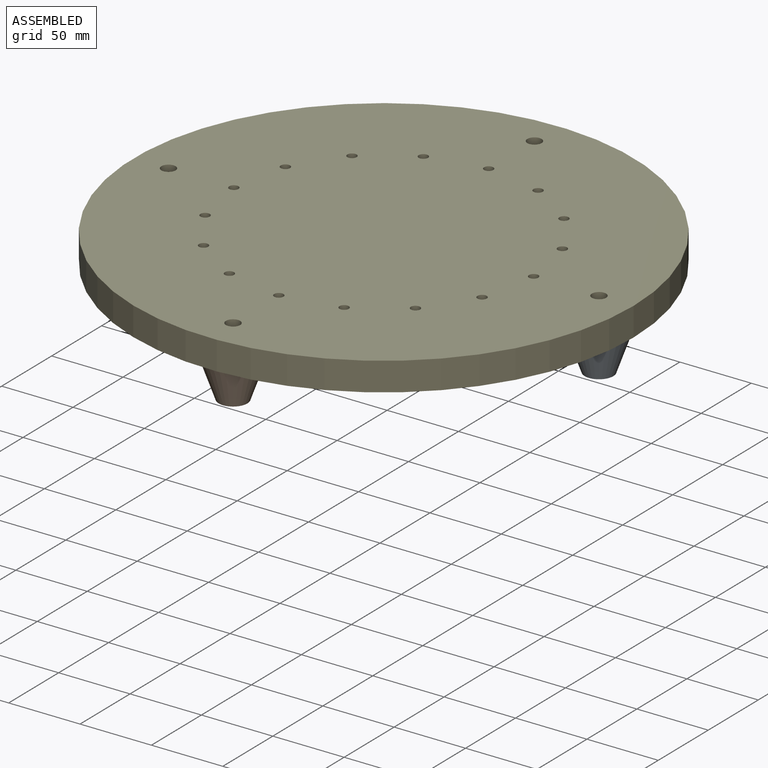
[diagram: assembled view]
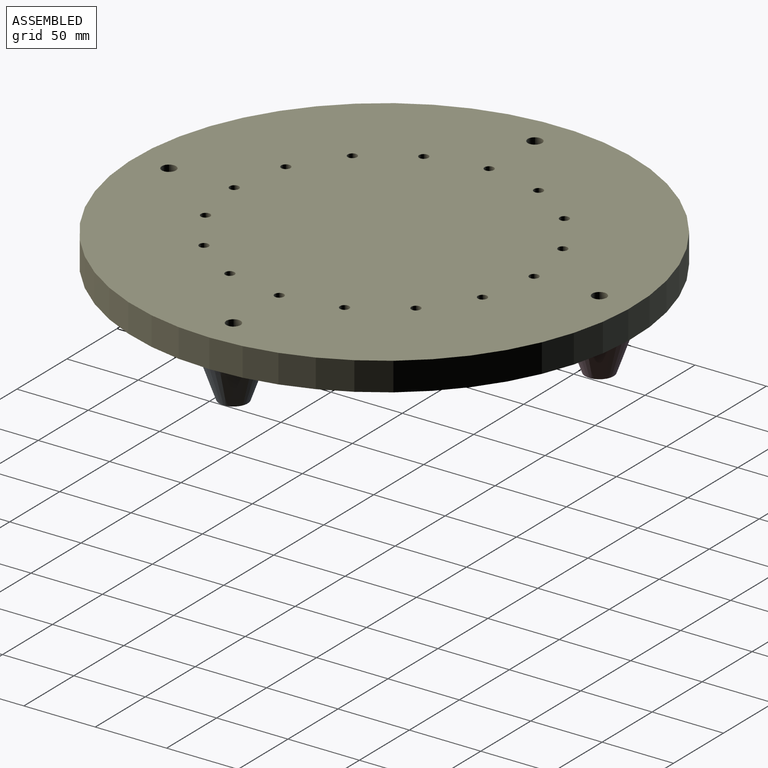
[diagram: assembled view, second angle]
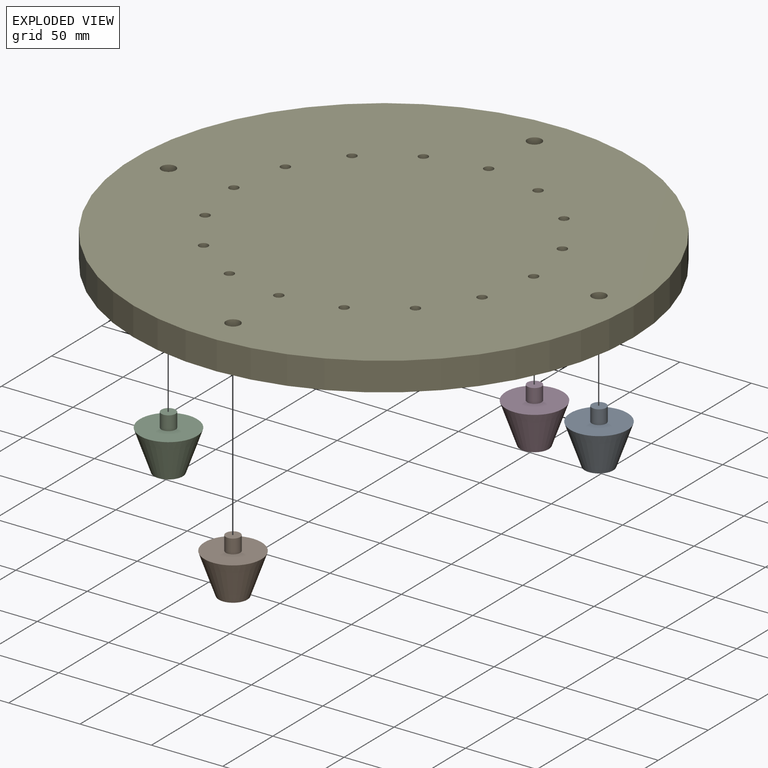
[diagram: exploded view]
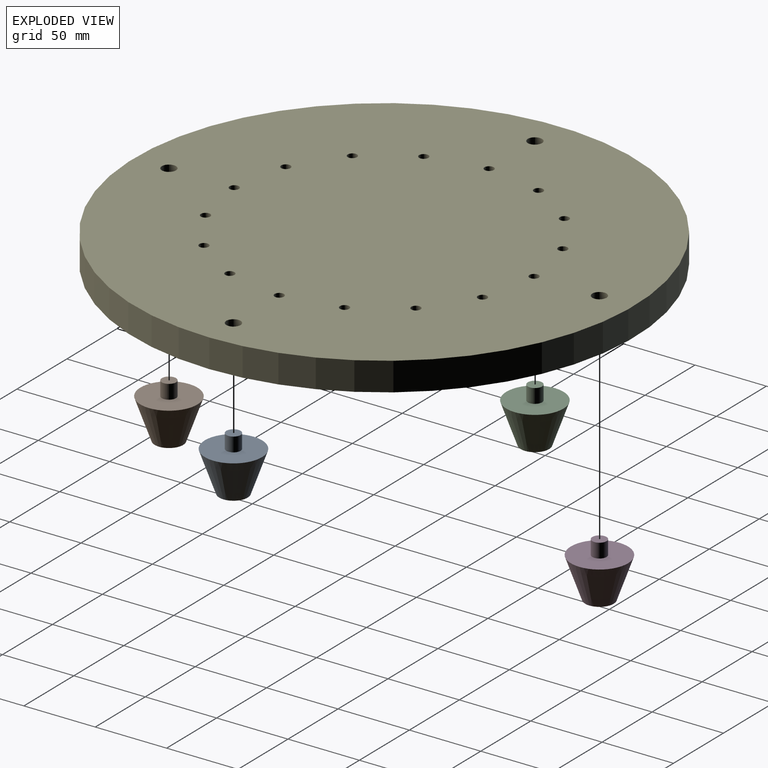
[diagram: exploded view, second angle]
ASSEMBLY  parts=5 mates=4
PART A: 5 faces, bbox 40x40x38.3 mm
  f0: plane 10x10mm, normal (0,0,1), area 78.5mm2, adj f1
  f1: cylinder r=5mm len=10mm, axis (0,0,-1), area 314.2mm2, adj f0,f2
  f2: plane 40x40mm, normal (0,0,1), area 1178.1mm2, adj f1,f3
  f3: cone r=20mm half-angle=19.5deg, axis (0,0,1), area 2827.4mm2, adj f2,f4
  f4: plane 20x20mm, normal (0,0,-1), area 314.2mm2, adj f3
PART B: same geometry as A
PART C: same geometry as A
PART D: same geometry as A
PART E: 23 faces, bbox 350x350x20 mm
  f0: cylinder r=3.25mm len=20mm, axis (0,0,-1), area 408.4mm2, adj f21,f22
  f1: cylinder r=3.25mm len=20mm, axis (0,0,-1), area 408.4mm2, adj f21,f22
  f2: cylinder r=3.25mm len=20mm, axis (0,0,-1), area 408.4mm2, adj f21,f22
  f3: cylinder r=3.25mm len=20mm, axis (0,0,-1), area 408.4mm2, adj f21,f22
  f4: cylinder r=3.25mm len=20mm, axis (0,0,-1), area 408.4mm2, adj f21,f22
  f5: cylinder r=3.25mm len=20mm, axis (0,0,-1), area 408.4mm2, adj f21,f22
  f6: cylinder r=3.25mm len=20mm, axis (0,0,-1), area 408.4mm2, adj f21,f22
  f7: cylinder r=3.25mm len=20mm, axis (0,0,-1), area 408.4mm2, adj f21,f22
  f8: cylinder r=3.25mm len=20mm, axis (0,0,-1), area 408.4mm2, adj f21,f22
  f9: cylinder r=3.25mm len=20mm, axis (0,0,-1), area 408.4mm2, adj f21,f22
  f10: cylinder r=3.25mm len=20mm, axis (0,0,-1), area 408.4mm2, adj f21,f22
  f11: cylinder r=3.25mm len=20mm, axis (0,0,-1), area 408.4mm2, adj f21,f22
  f12: cylinder r=3.25mm len=20mm, axis (0,0,-1), area 408.4mm2, adj f21,f22
  f13: cylinder r=3.25mm len=20mm, axis (0,0,-1), area 408.4mm2, adj f21,f22
  f14: cylinder r=3.25mm len=20mm, axis (0,0,-1), area 408.4mm2, adj f21,f22
  f15: cylinder r=3.25mm len=20mm, axis (0,0,-1), area 408.4mm2, adj f21,f22
  f16: cylinder r=5mm len=20mm, axis (0,0,-1), area 628.3mm2, adj f21,f22
  f17: cylinder r=5mm len=20mm, axis (0,0,-1), area 628.3mm2, adj f21,f22
  f18: cylinder r=5mm len=20mm, axis (0,0,-1), area 628.3mm2, adj f21,f22
  f19: cylinder r=5mm len=20mm, axis (0,0,-1), area 628.3mm2, adj f21,f22
  f20: cylinder r=175mm len=350mm, axis (0,0,-1), area 21991.1mm2, adj f21,f22
  f21: plane 350x350mm, normal (0,0,1), area 95366.2mm2, adj f0,f1,f2,f3,f4,f5,f6,f7
  f22: plane 350x350mm, normal (0,0,-1), area 95366.2mm2, adj f0,f1,f2,f3,f4,f5,f6,f7
PLACE A t=(156.18,-3.87,-20.48)mm
PLACE B t=(5.4,-154.65,-20.48)mm
PLACE C t=(-145.38,-3.87,-20.48)mm
PLACE D t=(5.4,146.91,-20.48)mm
PLACE E t=(5.4,-3.87,-20.48)mm fixed
MATE cylindrical E.f19 <-> C.f1  axis (0,0,-1) through (-145.38,-3.87,-20.48)mm
MATE cylindrical E.f17 <-> A.f1  axis (0,0,-1) through (156.18,-3.87,-20.48)mm
MATE cylindrical E.f18 <-> D.f1  axis (0,0,-1) through (5.4,146.91,-20.48)mm
MATE cylindrical E.f16 <-> B.f1  axis (0,0,-1) through (5.4,-154.65,-20.48)mm
